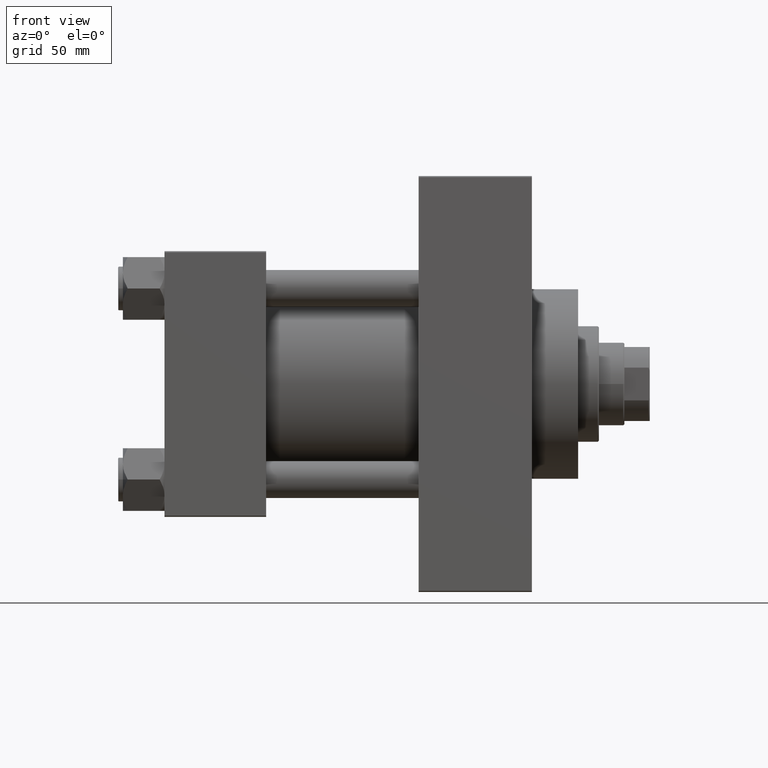
[diagram: clean part render]
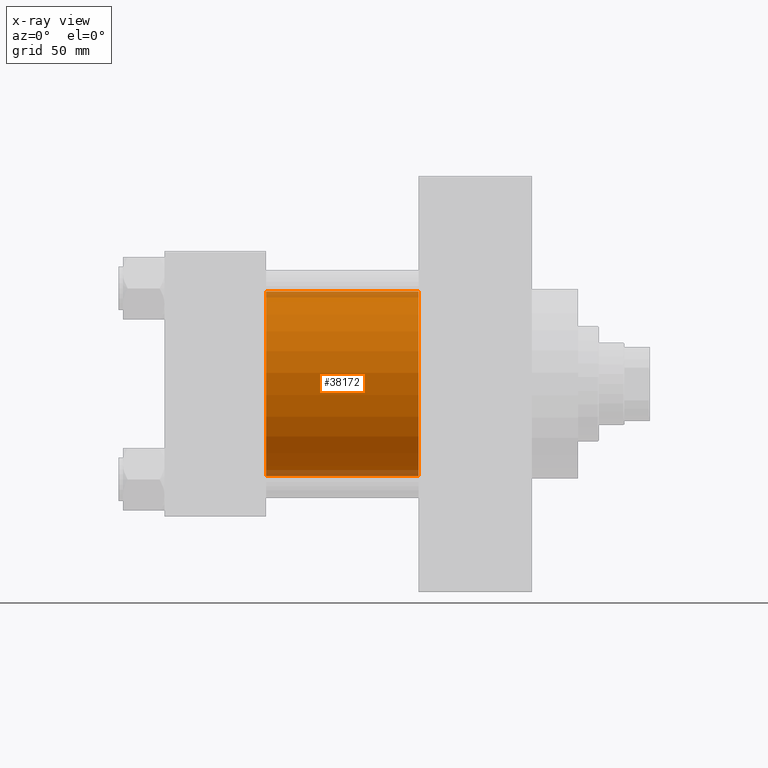
[diagram: x-ray — body ghosted, one internal face saturated and labeled with its STEP entity id]
A machine part, front view, then the same camera in x-ray: the body is ghosted and one INTERNAL B-rep face — a face not visible from any outside direction — is saturated and labeled: STEP entity #38172.
In plain terms, the highlighted cylindrical surface (partial cylindrical patch) has radius 40 mm, axis along (-1, -0, -0).
Its self-contained STEP definition (entity closure, byte-faithful):
#1152 = EDGE_CURVE ( 'NONE', #27578, #18521, #16324, .T. ) ;
#2195 = CARTESIAN_POINT ( 'NONE',  ( 110.0000000000000000, -2.602085213965210642E-15, 40.00000000000000000 ) ) ;
#2245 = ORIENTED_EDGE ( 'NONE', *, *, #36553, .F. ) ;
#2918 = CIRCLE ( 'NONE', #10070, 40.00000000000000000 ) ;
#3146 = DIRECTION ( 'NONE',  ( -1.000000000000000000, -0.000000000000000000, -0.000000000000000000 ) ) ;
#6474 = DIRECTION ( 'NONE',  ( 1.000000000000000000, 0.000000000000000000, 0.000000000000000000 ) ) ;
#6765 = AXIS2_PLACEMENT_3D ( 'NONE', #32243, #31747, #28500 ) ;
#8423 = VECTOR ( 'NONE', #44573, 1000.000000000000000 ) ;
#9812 = DIRECTION ( 'NONE',  ( -1.000000000000000000, -0.000000000000000000, -0.000000000000000000 ) ) ;
#10070 = AXIS2_PLACEMENT_3D ( 'NONE', #40740, #6474, #36978 ) ;
#13850 = ORIENTED_EDGE ( 'NONE', *, *, #41912, .F. ) ;
#14050 = CARTESIAN_POINT ( 'NONE',  ( 110.0000000000000000, -2.602085213965210642E-15, 40.00000000000000000 ) ) ;
#14380 = CARTESIAN_POINT ( 'NONE',  ( 110.0000000000000000, 2.296501982624201990E-15, -40.00000000000000000 ) ) ;
#14548 = LINE ( 'NONE', #14050, #8423 ) ;
#15307 = EDGE_CURVE ( 'NONE', #18521, #31999, #33389, .T. ) ;
#15606 = CARTESIAN_POINT ( 'NONE',  ( 44.00000000000000000, 2.296501982624201990E-15, -40.00000000000000000 ) ) ;
#16324 = CIRCLE ( 'NONE', #6765, 40.00000000000000000 ) ;
#17567 = DIRECTION ( 'NONE',  ( 0.000000000000000000, 0.000000000000000000, 1.000000000000000000 ) ) ;
#18521 = VERTEX_POINT ( 'NONE', #22401 ) ;
#20668 = VECTOR ( 'NONE', #3146, 1000.000000000000000 ) ;
#22401 = CARTESIAN_POINT ( 'NONE',  ( 110.0000000000000000, 2.296501982624201990E-15, -40.00000000000000000 ) ) ;
#23100 = ORIENTED_EDGE ( 'NONE', *, *, #1152, .T. ) ;
#26948 = VERTEX_POINT ( 'NONE', #46068 ) ;
#27578 = VERTEX_POINT ( 'NONE', #2195 ) ;
#28500 = DIRECTION ( 'NONE',  ( 0.000000000000000000, 0.000000000000000000, -1.000000000000000000 ) ) ;
#30330 = ORIENTED_EDGE ( 'NONE', *, *, #15307, .T. ) ;
#31747 = DIRECTION ( 'NONE',  ( 1.000000000000000000, 0.000000000000000000, 0.000000000000000000 ) ) ;
#31999 = VERTEX_POINT ( 'NONE', #15606 ) ;
#32243 = CARTESIAN_POINT ( 'NONE',  ( 110.0000000000000000, -2.602085213965210642E-15, 0.000000000000000000 ) ) ;
#32318 = FACE_OUTER_BOUND ( 'NONE', #41580, .T. ) ;
#33389 = LINE ( 'NONE', #14380, #20668 ) ;
#36553 = EDGE_CURVE ( 'NONE', #27578, #26948, #14548, .T. ) ;
#36978 = DIRECTION ( 'NONE',  ( 0.000000000000000000, 0.000000000000000000, -1.000000000000000000 ) ) ;
#38172 = ADVANCED_FACE ( 'NONE', ( #32318 ), #44081, .F. ) ;
#40740 = CARTESIAN_POINT ( 'NONE',  ( 44.00000000000000000, -2.602085213965210642E-15, 0.000000000000000000 ) ) ;
#41580 = EDGE_LOOP ( 'NONE', ( #23100, #30330, #13850, #2245 ) ) ;
#41912 = EDGE_CURVE ( 'NONE', #26948, #31999, #2918, .T. ) ;
#43591 = AXIS2_PLACEMENT_3D ( 'NONE', #47845, #9812, #17567 ) ;
#44081 = CYLINDRICAL_SURFACE ( 'NONE', #43591, 40.00000000000000000 ) ;
#44573 = DIRECTION ( 'NONE',  ( -1.000000000000000000, -0.000000000000000000, -0.000000000000000000 ) ) ;
#46068 = CARTESIAN_POINT ( 'NONE',  ( 44.00000000000000000, -2.602085213965210642E-15, 40.00000000000000000 ) ) ;
#47845 = CARTESIAN_POINT ( 'NONE',  ( 110.0000000000000000, -2.602085213965210642E-15, 0.000000000000000000 ) ) ;